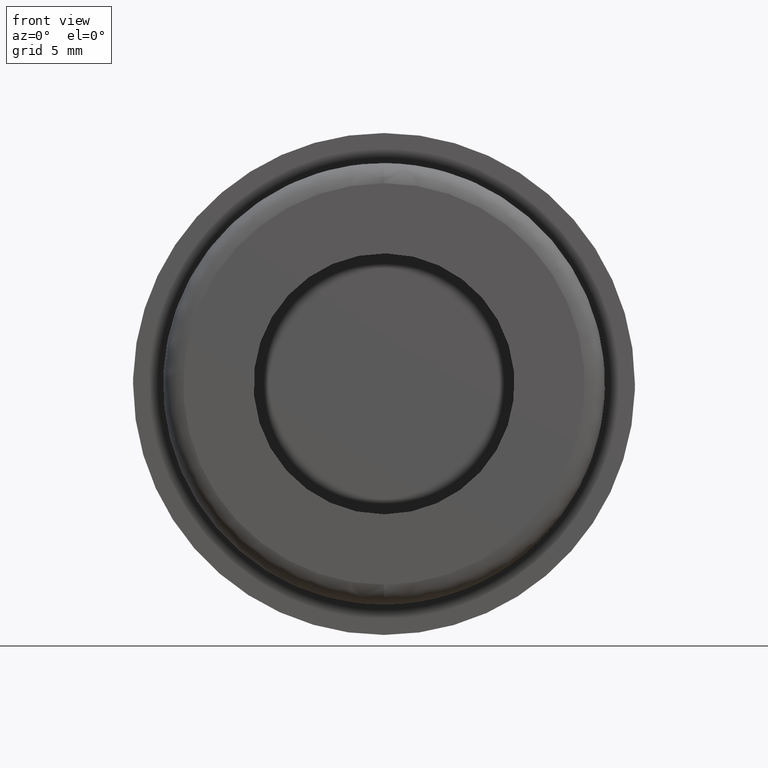
[diagram: clean part render]
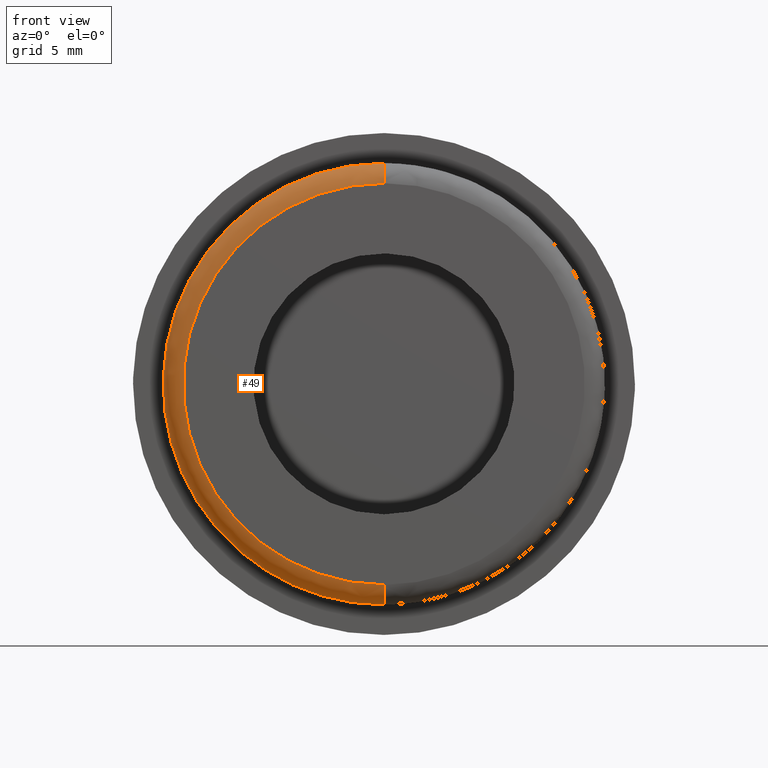
[diagram: same view with one face highlighted and labeled with its STEP entity id]
A machine part, front view. The second image highlights one B-rep face of the part: STEP entity #49.
In plain terms, the highlighted face is a freeform B-spline surface patch.
Its self-contained STEP definition (entity closure, byte-faithful):
#49=ADVANCED_FACE('',(#157),#156,.T.);
#156=( BOUNDED_SURFACE() B_SPLINE_SURFACE( 2,2,((#356,#357,#358,#359,#360),(#361,#362,#363,#364,#365),(#366,#367,#368,#369,#370),(#371,#372,#373,#374,#375),(#376,#377,#378,#379,#380)), .UNSPECIFIED.,.F.,.F.,.F.) B_SPLINE_SURFACE_WITH_KNOTS((3,2,3),(3,2,3),(0.00000000000E+000,5.00000000000E-001,1.00000000000E+000),(0.00000000000E+000,5.00000000000E-001,1.00000000000E+000), .UNSPECIFIED. ) GEOMETRIC_REPRESENTATION_ITEM() RATIONAL_B_SPLINE_SURFACE(((1.00000000000E+000,7.07106779663E-001,1.00000000000E+000,7.07106779663E-001,1.00000000000E+000),(7.07106781187E-001,4.99999998923E-001,7.07106781187E-001,4.99999998923E-001,7.07106781187E-001),(1.00000000000E+000,7.07106779663E-001,1.00000000000E+000,7.07106779663E-001,1.00000000000E+000),(7.07106781187E-001,4.99999998923E-001,7.07106781187E-001,4.99999998923E-001,7.07106781187E-001),(1.00000000000E+000,7.07106779663E-001,1.00000000000E+000,7.07106779663E-001,1.00000000000E+000))) REPRESENTATION_ITEM('') SURFACE() );
#157=FACE_OUTER_BOUND('',#381,.T.);
#356=CARTESIAN_POINT('',(7.96685962013E-015,1.00000000000E+000,1.10000000000E+001));
#357=CARTESIAN_POINT('',(7.96685962013E-015,-4.30796552923E-009,1.10000000000E+001));
#358=CARTESIAN_POINT('',(7.40030168339E-015,1.46549439251E-014,9.99999999569E+000));
#359=CARTESIAN_POINT('',(6.83374374666E-015,4.30799504696E-009,8.99999999138E+000));
#360=CARTESIAN_POINT('',(6.83374375154E-015,1.00000000862E+000,9.00000000000E+000));
#361=CARTESIAN_POINT('',(-1.09999980000E+001,1.00000000000E+000,1.10000000000E+001));
#362=CARTESIAN_POINT('',(-1.09999980000E+001,-4.30796552923E-009,1.10000000000E+001));
#363=CARTESIAN_POINT('',(-9.99999799569E+000,1.46549439251E-014,9.99999999569E+000));
#364=CARTESIAN_POINT('',(-8.99999799138E+000,4.30799504696E-009,8.99999999138E+000));
#365=CARTESIAN_POINT('',(-8.99999800000E+000,1.00000000862E+000,9.00000000000E+000));
#366=CARTESIAN_POINT('',(-1.09999980000E+001,1.00000000000E+000,2.00000001030E-006));
#367=CARTESIAN_POINT('',(-1.09999980000E+001,-4.30796552923E-009,2.00000001030E-006));
#368=CARTESIAN_POINT('',(-9.99999799569E+000,1.46549439251E-014,2.00000000967E-006));
#369=CARTESIAN_POINT('',(-8.99999799138E+000,4.30799504696E-009,2.00000000904E-006));
#370=CARTESIAN_POINT('',(-8.99999800000E+000,1.00000000862E+000,2.00000000904E-006));
#371=CARTESIAN_POINT('',(-1.09999980000E+001,1.00000000000E+000,-1.09999960000E+001));
#372=CARTESIAN_POINT('',(-1.09999980000E+001,-4.30796552923E-009,-1.09999960000E+001));
#373=CARTESIAN_POINT('',(-9.99999799569E+000,1.46549439251E-014,-9.99999599569E+000));
#374=CARTESIAN_POINT('',(-8.99999799138E+000,4.30799504696E-009,-8.99999599138E+000));
#375=CARTESIAN_POINT('',(-8.99999800000E+000,1.00000000862E+000,-8.99999600000E+000));
#376=CARTESIAN_POINT('',(-5.84452390231E-015,1.00000000000E+000,-1.09999960000E+001));
#377=CARTESIAN_POINT('',(-5.84452390231E-015,-4.30796552923E-009,-1.09999960000E+001));
#378=CARTESIAN_POINT('',(-5.15550128513E-015,1.46549439251E-014,-9.99999599569E+000));
#379=CARTESIAN_POINT('',(-4.46647866795E-015,4.30799504696E-009,-8.99999599138E+000));
#380=CARTESIAN_POINT('',(-4.46647867389E-015,1.00000000862E+000,-8.99999600000E+000));
#381=EDGE_LOOP('',(#593,#594,#595,#596,#597,#598));
#593=ORIENTED_EDGE('',*,*,#724,.T.);
#594=ORIENTED_EDGE('',*,*,#725,.T.);
#595=ORIENTED_EDGE('',*,*,#726,.T.);
#596=ORIENTED_EDGE('',*,*,#719,.T.);
#597=ORIENTED_EDGE('',*,*,#706,.F.);
#598=ORIENTED_EDGE('',*,*,#723,.F.);
#706=EDGE_CURVE('',#896,#897,#898,.T.);
#719=EDGE_CURVE('',#985,#897,#986,.T.);
#723=EDGE_CURVE('',#1006,#896,#1013,.T.);
#724=EDGE_CURVE('',#1006,#1019,#1020,.T.);
#725=EDGE_CURVE('',#1019,#1026,#1027,.T.);
#726=EDGE_CURVE('',#1026,#985,#1033,.T.);
#896=VERTEX_POINT('',#1330);
#897=VERTEX_POINT('',#1331);
#898=CIRCLE('',#1335,9.99999800093E+000);
#985=VERTEX_POINT('',#1389);
#986=(BOUNDED_CURVE() B_SPLINE_CURVE(2,(#1390,#1391,#1392),.UNSPECIFIED.,.F.,.F.) B_SPLINE_CURVE_WITH_KNOTS((3,3),(0.00000000000E+000,5.00000000000E-001),.UNSPECIFIED.) CURVE() GEOMETRIC_REPRESENTATION_ITEM() RATIONAL_B_SPLINE_CURVE((1.00000000000E+000,7.07106779663E-001,1.00000000000E+000)) REPRESENTATION_ITEM('') );
#1006=VERTEX_POINT('',#1403);
#1013=(BOUNDED_CURVE() B_SPLINE_CURVE(3,(#1408,#1409,#1410,#1411,#1412),.UNSPECIFIED.,.F.,.F.) B_SPLINE_CURVE_WITH_KNOTS((4,1,4),(0.00000000000E+000,2.50000001099E-001,5.00000001909E-001),.UNSPECIFIED.) CURVE() GEOMETRIC_REPRESENTATION_ITEM() RATIONAL_B_SPLINE_CURVE((1.00000000000E+000,1.00000000000E+000,1.00000000000E+000,1.00000000000E+000,1.00000000000E+000)) REPRESENTATION_ITEM('') );
#1019=VERTEX_POINT('',#1413);
#1020=CIRCLE('',#1417,1.09999987620E+001);
#1026=VERTEX_POINT('',#1418);
#1027=CIRCLE('',#1422,1.09999975505E+001);
#1033=CIRCLE('',#1426,1.09999986112E+001);
#1330=CARTESIAN_POINT('',(7.43849426499E-015,1.86233288293E-014,1.00000000019E+001));
#1331=CARTESIAN_POINT('',(-2.96059473233E-015,6.06370343052E-015,-9.99999600000E+000));
#1332=CARTESIAN_POINT('',(3.94009269655E-010,1.23435161299E-014,2.00093186287E-006));
#1333=DIRECTION('',(2.09984779257E-017,-1.00000000000E+000,6.27981395477E-016));
#1334=DIRECTION('',(-3.94005592042E-011,6.27981395476E-016,1.00000000000E+000));
#1335=AXIS2_PLACEMENT_3D('',#1332,#1333,#1334);
#1389=CARTESIAN_POINT('',(0.00000000000E+000,1.00000000000E+000,-1.09999960000E+001));
#1390=CARTESIAN_POINT('',(-3.15030143404E-015,1.00000000000E+000,-1.09999960000E+001));
#1391=CARTESIAN_POINT('',(-3.15030143404E-015,-4.30796552923E-009,-1.09999960000E+001));
#1392=CARTESIAN_POINT('',(-2.70620817775E-015,1.46549439251E-014,-9.99999599569E+000));
#1403=CARTESIAN_POINT('',(0.00000000000E+000,1.00000000000E+000,1.10000000000E+001));
#1408=CARTESIAN_POINT('',(5.92118946467E-015,1.00000000000E+000,1.10000000000E+001));
#1409=CARTESIAN_POINT('',(5.79737303423E-015,7.40549558527E-001,1.10022240593E+001));
#1410=CARTESIAN_POINT('',(5.52190008689E-015,2.16623682182E-001,1.07833763099E+001));
#1411=CARTESIAN_POINT('',(5.35756269835E-015,-2.22406181552E-003,1.02594504314E+001));
#1412=CARTESIAN_POINT('',(5.32907052108E-015,1.46927823871E-014,9.99999999029E+000));
#1413=CARTESIAN_POINT('',(-1.09965240827E+001,9.99999999889E-001,2.76432999625E-001));
#1414=CARTESIAN_POINT('',(2.96322161031E-007,9.99999999887E-001,1.23801186724E-006));
#1415=DIRECTION('',(7.64868825532E-027,-1.00000000000E+000,1.03050710885E-011));
#1416=DIRECTION('',(2.69383813074E-008,-1.03050710885E-011,-1.00000000000E+000));
#1417=AXIS2_PLACEMENT_3D('',#1414,#1415,#1416);
#1418=CARTESIAN_POINT('',(-7.19773455938E+000,1.00000000000E+000,-8.31820533168E+000));
#1419=CARTESIAN_POINT('',(-4.54675257444E-007,9.99999999399E-001,1.79903570441E-006));
#1420=DIRECTION('',(-6.46591791298E-011,-1.00000000000E+000,-7.98555690251E-010));
#1421=DIRECTION('',(9.99684188798E-001,-4.45709629140E-011,-2.51301147404E-002));
#1422=AXIS2_PLACEMENT_3D('',#1419,#1420,#1421);
#1423=CARTESIAN_POINT('',(2.27737379621E-007,1.00000000000E+000,2.61123080669E-006));
#1424=DIRECTION('',(1.75397370798E-017,-1.00000000000E+000,-1.51771122581E-017));
#1425=DIRECTION('',(6.54339608713E-001,1.54074395551E-033,7.56200817554E-001));
#1426=AXIS2_PLACEMENT_3D('',#1423,#1424,#1425);